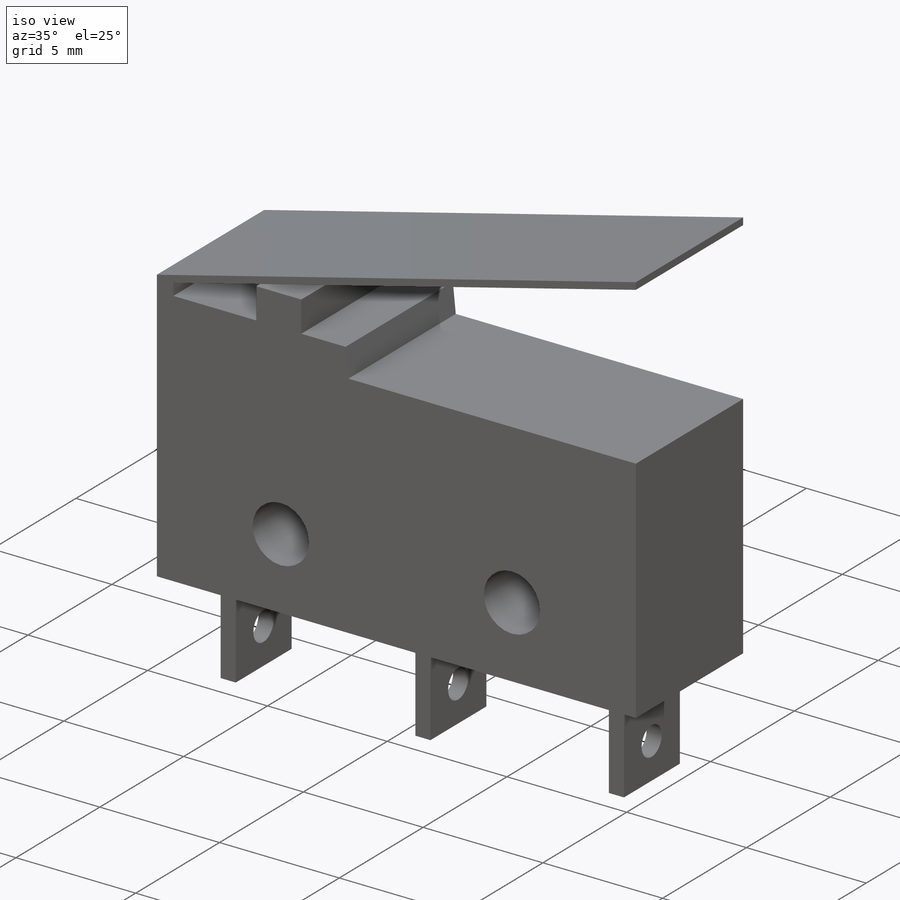
[diagram: iso view]
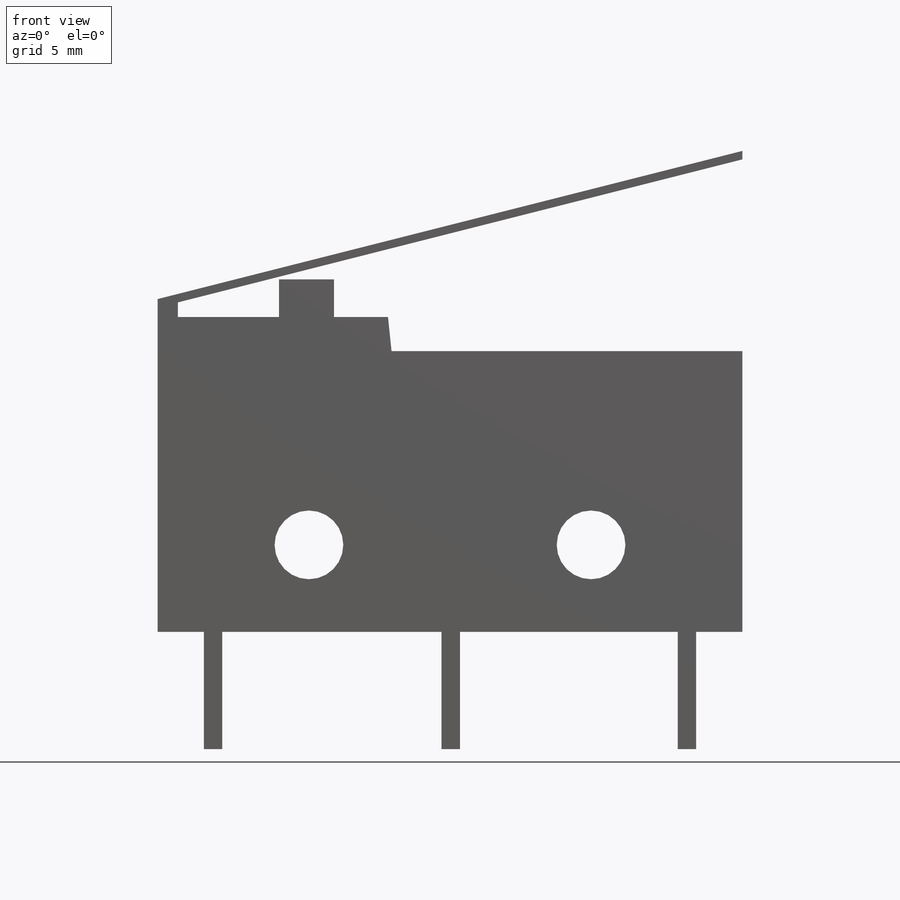
[diagram: front view]
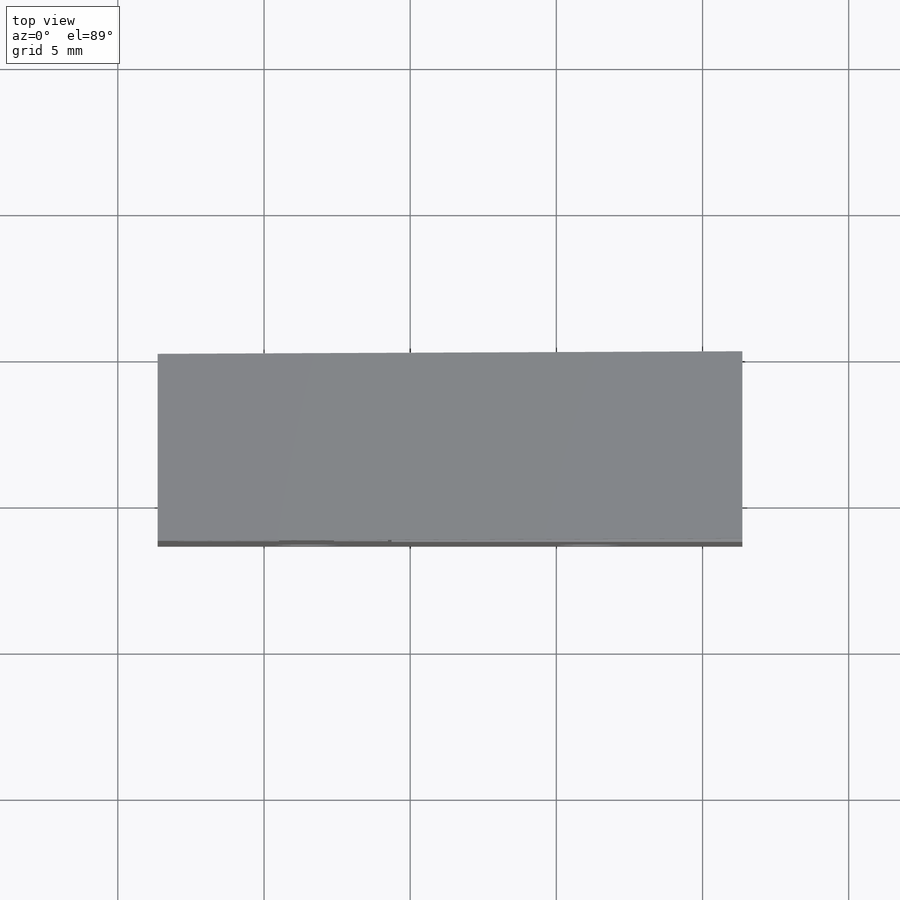
[diagram: top view]
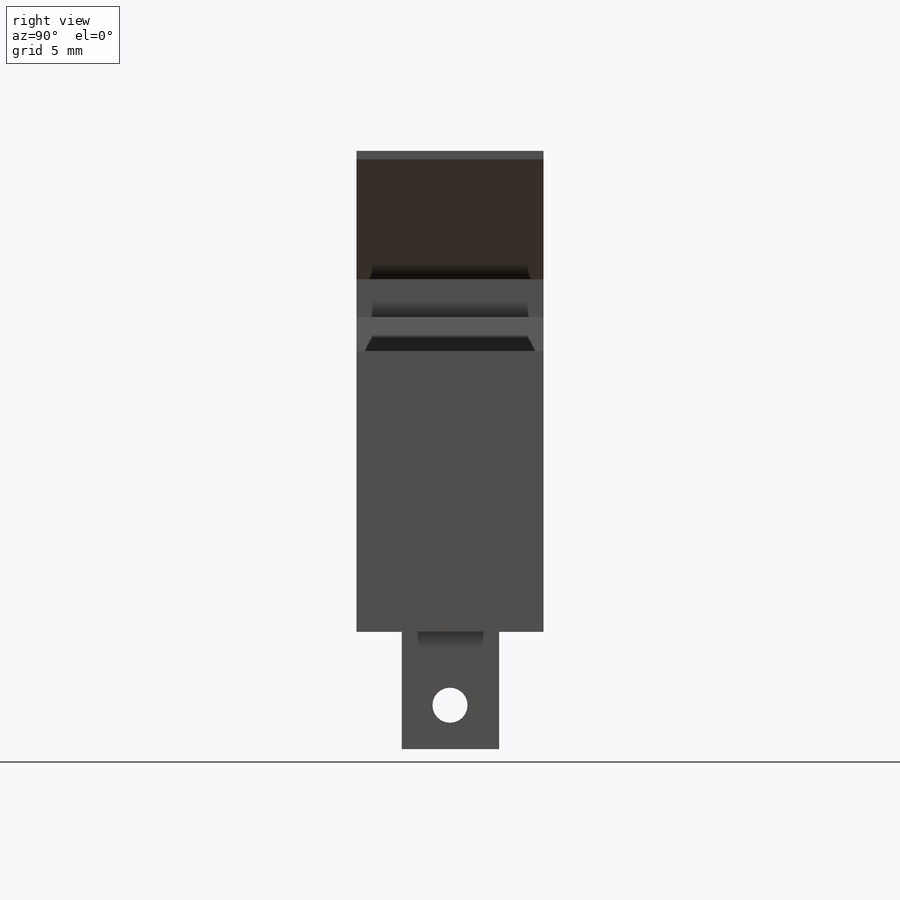
[diagram: right view]
SOLIDWORKS PART (.sldprt)
format: sldprt  version: not decoded by parser v0  size: 238,080 bytes
history: native  units: mm
features: sketch x5, plane x4, extrude x3, cut_extrude x2, material x1 (+8 scaffold rows collapsed)
feature tree (23):
  scaffold x8  (default folders/planes/origin — collapsed)
  material  "Matériau <non spécifié>"
  plane  "Plan de face"
  plane  "Plan de dessus"
  plane  "Plan de droite"
  sketch  "Esquisse1"  dims[D1=20.0mm D2=9.6mm]
  extrude  "Boss.-Extru.1"  Depth=6.4mm
  sketch  "Esquisse2"  dims[c1.D1=2.35mm c1.D2=2.35mm c1.D3=2.35mm c2.D2=2.975mm c2.D3=5.175mm]
  cut_extrude  "Enlèv. mat.-Extru.1"  Depth=6.4mm
  sketch  "Esquisse4"  dims[c1.D1=0.29mm c1.D2=0.29mm c1.D3=1.29mm c1.D4=0.8mm c1.D5=0.7mm c1.D6=20.0mm c1.D7=1.88mm c1.D8=1.0mm c1.D9=0.5mm c2.D4=1.8mm c2.D8=3.46mm c2.D10=8.0mm c2.D11=~1.168066mm c2.D12=20.0mm]
  extrude  "Boss.-Extru.66"  Depth=6.4mm
  plane  "Plan1"
  sketch  "Esquisse5"  dims[D1=3.33mm D2=3.33mm D3=3.33mm D4=0.63mm D5=0.63mm D6=0.63mm D7=1.58mm D8=1.58mm D9=7.5mm D10=1.55mm D11=1.55mm]
  extrude  "Boss.-Extru.67"  Depth=4.01mm
  sketch  "Esquisse6"  dims[D1=1.2mm D2=1.5mm D3=1.65mm D4=3.33mm]
  cut_extrude  "Enlèv. mat.-Extru.2"  Depth=19.01mm
decode coverage: 10 of 10 modeling features carry decoded parameters
note: ~ marks probable driven/reference dimensions
note: suppression state not decoded; provenance and decode notes live in map.json
